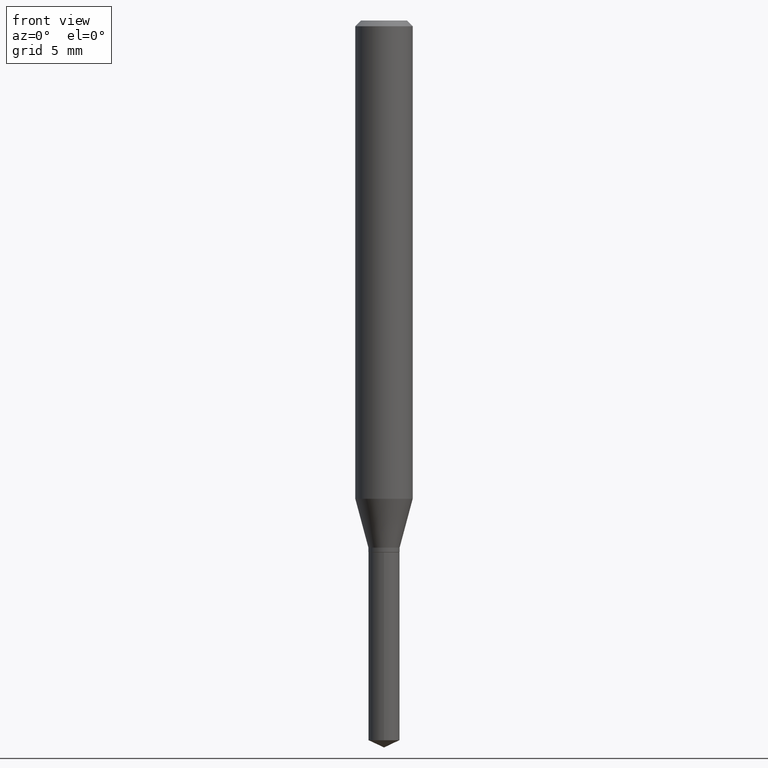
[diagram: clean part render]
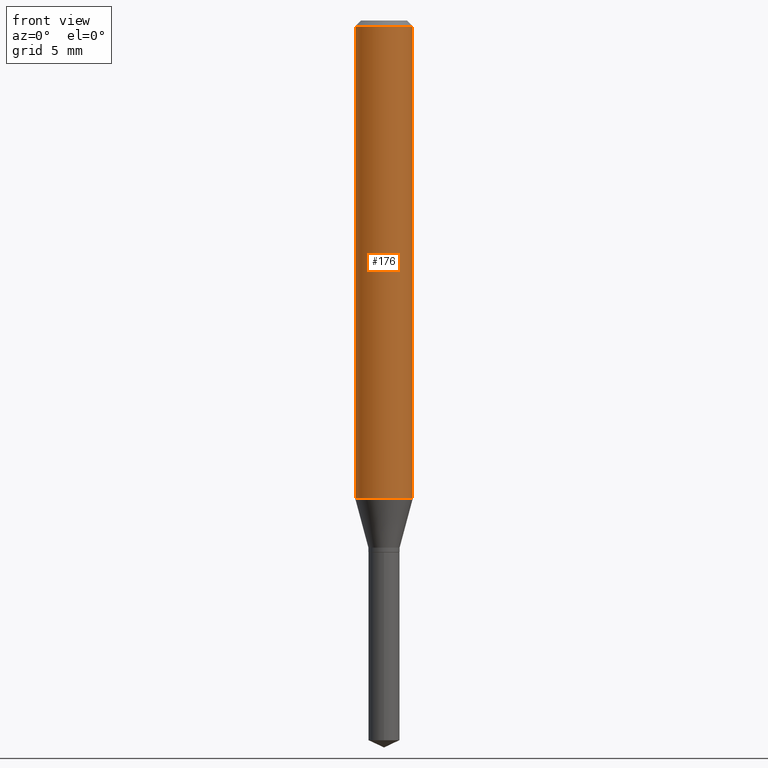
[diagram: same view with one face highlighted and labeled with its STEP entity id]
A machine part, front view. The second image highlights one B-rep face of the part: STEP entity #176.
In plain terms, the highlighted cylindrical surface (edge-blend (fillet) strip) has radius 1.4999 mm, axis along (-0, 0, 1).
Its self-contained STEP definition (entity closure, byte-faithful):
#1 = VERTEX_POINT ( 'NONE', #342 ) ;
#14 = DIRECTION ( 'NONE',  ( -2.445468806185136877E-29, 3.491481338843145188E-15, 1.000000000000000000 ) ) ;
#20 = CYLINDRICAL_SURFACE ( 'NONE', #142, 0.05905000000000006077 ) ;
#26 = DIRECTION ( 'NONE',  ( 1.000000000000000000, -6.982962677686266711E-15, 4.876176775795935793E-29 ) ) ;
#35 = ORIENTED_EDGE ( 'NONE', *, *, #321, .F. ) ;
#55 = CARTESIAN_POINT ( 'NONE',  ( 0.05905000000000006077, -4.123439461173744764E-16, 2.879382386107503023E-30 ) ) ;
#64 = EDGE_CURVE ( 'NONE', #1, #115, #392, .T. ) ;
#85 = VECTOR ( 'NONE', #14, 39.37007874015748143 ) ;
#96 = CARTESIAN_POINT ( 'NONE',  ( 2.888098660104664204E-31, -4.123439461173780263E-17, -0.01181000000000007218 ) ) ;
#106 = ORIENTED_EDGE ( 'NONE', *, *, #487, .T. ) ;
#110 = DIRECTION ( 'NONE',  ( 1.000000000000000000, -6.982962677686266711E-15, 0.000000000000000000 ) ) ;
#115 = VERTEX_POINT ( 'NONE', #463 ) ;
#125 = AXIS2_PLACEMENT_3D ( 'NONE', #456, #151, #110 ) ;
#132 = DIRECTION ( 'NONE',  ( -2.445468806185136597E-29, 3.491481338843145583E-15, 1.000000000000000000 ) ) ;
#142 = AXIS2_PLACEMENT_3D ( 'NONE', #221, #474, #26 ) ;
#151 = DIRECTION ( 'NONE',  ( -2.445468806185136597E-29, 3.491481338843145583E-15, 1.000000000000000000 ) ) ;
#157 = ORIENTED_EDGE ( 'NONE', *, *, #64, .T. ) ;
#176 = ADVANCED_FACE ( 'NONE', ( #292 ), #20, .T. ) ;
#199 = CARTESIAN_POINT ( 'NONE',  ( -0.05904999999999999832, -1.319411316110491759E-15, -0.01181000000000007218 ) ) ;
#211 = LINE ( 'NONE', #55, #85 ) ;
#221 = CARTESIAN_POINT ( 'NONE',  ( 0.000000000000000000, 0.000000000000000000, 0.000000000000000000 ) ) ;
#231 = VECTOR ( 'NONE', #332, 39.37007874015748143 ) ;
#251 = LINE ( 'NONE', #345, #231 ) ;
#273 = CARTESIAN_POINT ( 'NONE',  ( 0.05904999999999999832, -4.535783407291118600E-16, -0.01181000000000007218 ) ) ;
#290 = AXIS2_PLACEMENT_3D ( 'NONE', #96, #132, #400 ) ;
#292 = FACE_OUTER_BOUND ( 'NONE', #330, .T. ) ;
#321 = EDGE_CURVE ( 'NONE', #414, #426, #328, .T. ) ;
#328 = CIRCLE ( 'NONE', #290, 0.05904999999999999832 ) ;
#330 = EDGE_LOOP ( 'NONE', ( #377, #157, #106, #35 ) ) ;
#332 = DIRECTION ( 'NONE',  ( -2.445468806185136877E-29, 3.491481338843145188E-15, 1.000000000000000000 ) ) ;
#342 = CARTESIAN_POINT ( 'NONE',  ( -0.05905000000000011628, -3.017163723075586861E-15, -0.9843212307360184044 ) ) ;
#345 = CARTESIAN_POINT ( 'NONE',  ( -0.05905000000000006077, 4.195754854663395916E-16, -2.904631170795524694E-30 ) ) ;
#354 = EDGE_CURVE ( 'NONE', #1, #414, #251, .T. ) ;
#377 = ORIENTED_EDGE ( 'NONE', *, *, #354, .F. ) ;
#392 = CIRCLE ( 'NONE', #125, 0.05905000000000011628 ) ;
#400 = DIRECTION ( 'NONE',  ( 1.000000000000000000, -6.982962677686266711E-15, 0.000000000000000000 ) ) ;
#414 = VERTEX_POINT ( 'NONE', #199 ) ;
#426 = VERTEX_POINT ( 'NONE', #273 ) ;
#456 = CARTESIAN_POINT ( 'NONE',  ( 2.407126865030695600E-29, -3.436739208541926354E-15, -0.9843212307360184044 ) ) ;
#463 = CARTESIAN_POINT ( 'NONE',  ( 0.05905000000000011628, -3.849083154659301274E-15, -0.9843212307360184044 ) ) ;
#474 = DIRECTION ( 'NONE',  ( -2.445468806185136597E-29, 3.491481338843145583E-15, 1.000000000000000000 ) ) ;
#487 = EDGE_CURVE ( 'NONE', #115, #426, #211, .T. ) ;